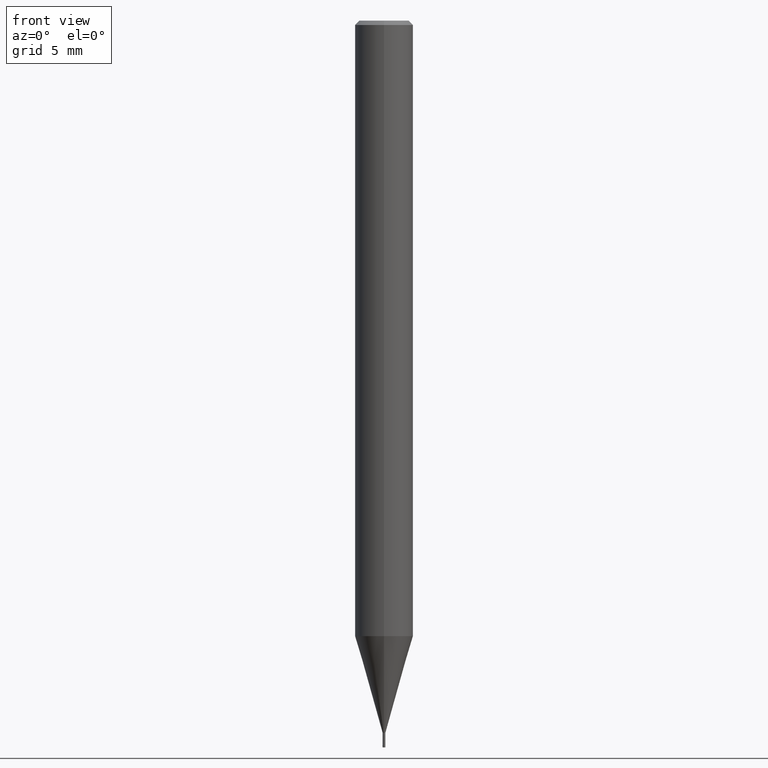
[diagram: clean part render]
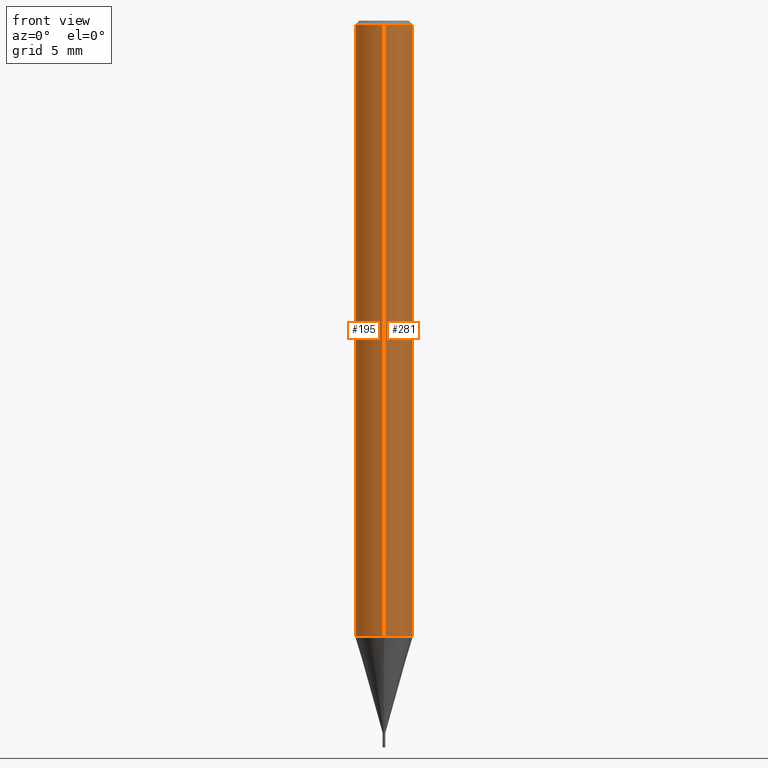
[diagram: same view with one multi-face feature highlighted, each face labeled with its STEP entity id]
A machine part, front view. The highlighted faces form ONE feature: a constant-radius fillet chain: 2 tangent blend faces with common blend radius 2 mm. The faces share edges in the B-rep.
Their STEP definitions:
[1] entity #281 (Cylinder):
#147=EDGE_CURVE('',#333,#279,#383,.T.);
#167=EDGE_CURVE('',#353,#189,#405,.T.);
#189=VERTEX_POINT('',#430);
#223=EDGE_CURVE('',#279,#189,#468,.T.);
#279=VERTEX_POINT('',#531);
#281=ADVANCED_FACE('',(#533),#534,.T.);
#325=EDGE_CURVE('',#353,#333,#585,.T.);
#333=VERTEX_POINT('',#593);
#353=VERTEX_POINT('',#617);
#383=CIRCLE('',#642,2.0);
#405=CIRCLE('',#669,2.0);
#430=CARTESIAN_POINT('',(2.44921270764475E-016,-2.0,-0.289999999999999));
#468=LINE('',#749,#750);
#531=CARTESIAN_POINT('',(2.44921270764475E-016,-2.0,-42.338));
#533=FACE_OUTER_BOUND('',#827,.T.);
#534=CYLINDRICAL_SURFACE('',#828,2.0);
#585=LINE('',#896,#897);
#593=CARTESIAN_POINT('',(0.0,2.0,-42.338));
#617=CARTESIAN_POINT('',(0.0,2.0,-0.289999999999999));
#642=AXIS2_PLACEMENT_3D('',#956,#957,#958);
#669=AXIS2_PLACEMENT_3D('',#978,#979,#980);
#749=CARTESIAN_POINT('',(2.44921270764475E-016,-2.0,-21.314));
#750=VECTOR('',#1061,1.0);
#827=EDGE_LOOP('',(#1136,#1137,#1138,#1139));
#828=AXIS2_PLACEMENT_3D('',#1140,#1141,#1142);
#896=CARTESIAN_POINT('',(-2.44921270764475E-016,2.0,-21.314));
#897=VECTOR('',#1211,1.0);
#956=CARTESIAN_POINT('',(0.0,0.0,-42.338));
#957=DIRECTION('',(0.0,0.0,-1.0));
#958=DIRECTION('',(0.0,1.0,0.0));
#978=CARTESIAN_POINT('',(0.0,0.0,-0.289999999999999));
#979=DIRECTION('',(0.0,0.0,-1.0));
#980=DIRECTION('',(0.0,1.0,0.0));
#1061=DIRECTION('',(-0.0,-0.0,1.0));
#1136=ORIENTED_EDGE('',*,*,#325,.F.);
#1137=ORIENTED_EDGE('',*,*,#167,.T.);
#1138=ORIENTED_EDGE('',*,*,#223,.F.);
#1139=ORIENTED_EDGE('',*,*,#147,.F.);
#1140=CARTESIAN_POINT('',(0.0,0.0,-21.314));
#1141=DIRECTION('',(-0.0,-0.0,1.0));
#1142=DIRECTION('',(0.0,1.0,0.0));
#1211=DIRECTION('',(0.0,0.0,-1.0));
[2] entity #195 (Cylinder):
#157=EDGE_CURVE('',#279,#333,#393,.T.);
#189=VERTEX_POINT('',#430);
#195=ADVANCED_FACE('',(#438),#439,.T.);
#223=EDGE_CURVE('',#279,#189,#468,.T.);
#279=VERTEX_POINT('',#531);
#325=EDGE_CURVE('',#353,#333,#585,.T.);
#333=VERTEX_POINT('',#593);
#339=EDGE_CURVE('',#189,#353,#600,.T.);
#353=VERTEX_POINT('',#617);
#393=CIRCLE('',#654,2.0);
#430=CARTESIAN_POINT('',(2.44921270764475E-016,-2.0,-0.289999999999999));
#438=FACE_OUTER_BOUND('',#706,.T.);
#439=CYLINDRICAL_SURFACE('',#707,2.0);
#468=LINE('',#749,#750);
#531=CARTESIAN_POINT('',(2.44921270764475E-016,-2.0,-42.338));
#585=LINE('',#896,#897);
#593=CARTESIAN_POINT('',(0.0,2.0,-42.338));
#600=CIRCLE('',#919,2.0);
#617=CARTESIAN_POINT('',(0.0,2.0,-0.289999999999999));
#654=AXIS2_PLACEMENT_3D('',#962,#963,#964);
#706=EDGE_LOOP('',(#1025,#1026,#1027,#1028));
#707=AXIS2_PLACEMENT_3D('',#1029,#1030,#1031);
#749=CARTESIAN_POINT('',(2.44921270764475E-016,-2.0,-21.314));
#750=VECTOR('',#1061,1.0);
#896=CARTESIAN_POINT('',(-2.44921270764475E-016,2.0,-21.314));
#897=VECTOR('',#1211,1.0);
#919=AXIS2_PLACEMENT_3D('',#1228,#1229,#1230);
#962=CARTESIAN_POINT('',(0.0,0.0,-42.338));
#963=DIRECTION('',(0.0,0.0,-1.0));
#964=DIRECTION('',(0.0,1.0,0.0));
#1025=ORIENTED_EDGE('',*,*,#325,.T.);
#1026=ORIENTED_EDGE('',*,*,#157,.F.);
#1027=ORIENTED_EDGE('',*,*,#223,.T.);
#1028=ORIENTED_EDGE('',*,*,#339,.T.);
#1029=CARTESIAN_POINT('',(0.0,0.0,-21.314));
#1030=DIRECTION('',(-0.0,-0.0,1.0));
#1031=DIRECTION('',(0.0,1.0,0.0));
#1061=DIRECTION('',(-0.0,-0.0,1.0));
#1211=DIRECTION('',(0.0,0.0,-1.0));
#1228=CARTESIAN_POINT('',(0.0,0.0,-0.289999999999999));
#1229=DIRECTION('',(0.0,0.0,-1.0));
#1230=DIRECTION('',(0.0,1.0,0.0));